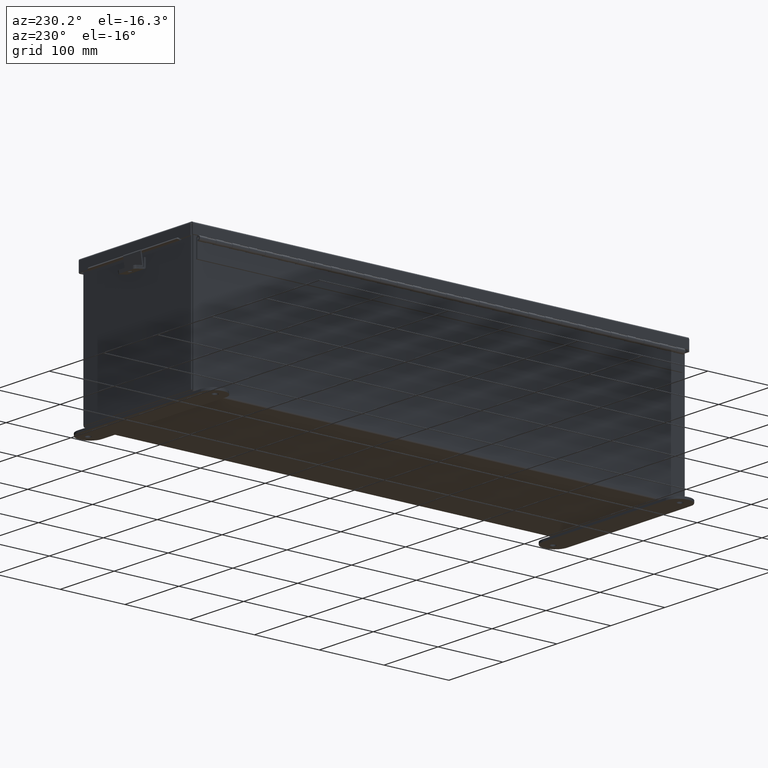
[diagram: clean part render]
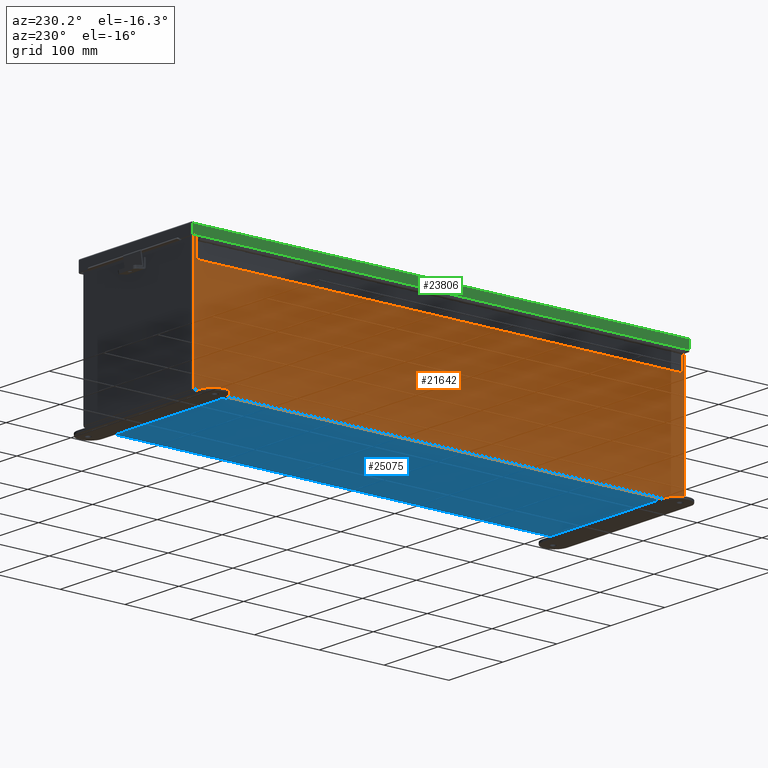
[diagram: same view with three faces highlighted in distinct colors, each labeled with its STEP entity id]
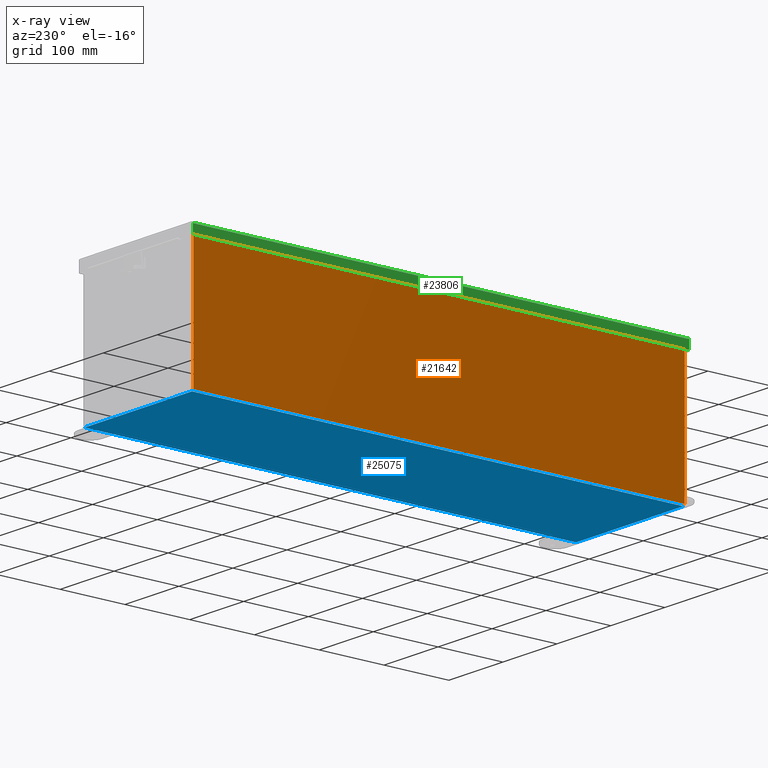
[diagram: x-ray of the same camera — body ghosted, the three highlighted faces saturated]
A machine part, auxiliary view with three faces highlighted in distinct colors.
The next image is the same camera in x-ray (body ghosted, the three faces saturated) — at least one of them is partly hidden behind the body in this view.
Their STEP definitions:

[orange] entity #21642 — the highlighted planar face has unit normal (1, 0, 0).
#181 = VERTEX_POINT ( 'NONE', #11195 ) ;
#613 = CARTESIAN_POINT ( 'NONE',  ( -4.000000000000000900, -14.92530000000000000, 0.01300000000000039000 ) ) ;
#937 = CARTESIAN_POINT ( 'NONE',  ( -4.000000000000000900, 14.92529999999999800, -1.417999849211356600E-014 ) ) ;
#1045 = DIRECTION ( 'NONE',  ( -3.479795166820706300E-015, 2.783836133456565100E-016, 1.000000000000000000 ) ) ;
#1255 = FACE_OUTER_BOUND ( 'NONE', #17171, .T. ) ;
#1970 = ORIENTED_EDGE ( 'NONE', *, *, #13761, .F. ) ;
#2481 = EDGE_CURVE ( 'NONE', #17202, #16959, #18126, .T. ) ;
#2558 = CARTESIAN_POINT ( 'NONE',  ( -4.000000000000028400, -14.92529999999999800, 7.837599999999999200 ) ) ;
#2726 = ORIENTED_EDGE ( 'NONE', *, *, #2481, .T. ) ;
#3441 = CARTESIAN_POINT ( 'NONE',  ( -4.000000000000000900, 14.92529999999999800, 0.01300000000000011600 ) ) ;
#4337 = CARTESIAN_POINT ( 'NONE',  ( -4.000000000000027500, 14.92529999999999800, 7.837599999999999200 ) ) ;
#5138 = VECTOR ( 'NONE', #1045, 39.37007874015748100 ) ;
#5485 = EDGE_CURVE ( 'NONE', #181, #17202, #14430, .T. ) ;
#5518 = VERTEX_POINT ( 'NONE', #613 ) ;
#6762 = VECTOR ( 'NONE', #25167, 39.37007874015748100 ) ;
#8067 = ORIENTED_EDGE ( 'NONE', *, *, #25911, .T. ) ;
#10499 = LINE ( 'NONE', #13136, #5138 ) ;
#10851 = DIRECTION ( 'NONE',  ( 1.000000000000000000, 0.0000000000000000000, 3.479795166820705900E-015 ) ) ;
#11195 = CARTESIAN_POINT ( 'NONE',  ( -4.000000000000028400, -14.92529999999999600, 7.837599999999999200 ) ) ;
#11683 = ORIENTED_EDGE ( 'NONE', *, *, #5485, .T. ) ;
#13136 = CARTESIAN_POINT ( 'NONE',  ( -4.000000000000000900, -14.92530000000000200, -1.002246732675576600E-014 ) ) ;
#13198 = VECTOR ( 'NONE', #13779, 39.37007874015748100 ) ;
#13761 = EDGE_CURVE ( 'NONE', #5518, #16959, #18603, .T. ) ;
#13779 = DIRECTION ( 'NONE',  ( 6.369233077286049900E-032, 1.000000000000000000, -1.830347124455966700E-017 ) ) ;
#14430 = LINE ( 'NONE', #2558, #19825 ) ;
#16701 = DIRECTION ( 'NONE',  ( 0.0000000000000000000, 1.000000000000000000, 0.0000000000000000000 ) ) ;
#16959 = VERTEX_POINT ( 'NONE', #3441 ) ;
#17171 = EDGE_LOOP ( 'NONE', ( #11683, #2726, #1970, #8067 ) ) ;
#17202 = VERTEX_POINT ( 'NONE', #4337 ) ;
#18126 = LINE ( 'NONE', #937, #6762 ) ;
#18603 = LINE ( 'NONE', #21841, #13198 ) ;
#18649 = CARTESIAN_POINT ( 'NONE',  ( -4.000000000000000900, 0.0000000000000000000, -1.417999849211356600E-014 ) ) ;
#19825 = VECTOR ( 'NONE', #16701, 39.37007874015748100 ) ;
#20584 = PLANE ( 'NONE',  #22172 ) ;
#21642 = ADVANCED_FACE ( 'NONE', ( #1255 ), #20584, .F. ) ;
#21841 = CARTESIAN_POINT ( 'NONE',  ( -4.000000000000000900, 14.92529999999999800, 0.01299999999999984300 ) ) ;
#22172 = AXIS2_PLACEMENT_3D ( 'NONE', #18649, #10851, #25011 ) ;
#25011 = DIRECTION ( 'NONE',  ( 3.479795166820705900E-015, 0.0000000000000000000, -1.000000000000000000 ) ) ;
#25167 = DIRECTION ( 'NONE',  ( 3.479795166820706300E-015, 0.0000000000000000000, -1.000000000000000000 ) ) ;
#25911 = EDGE_CURVE ( 'NONE', #5518, #181, #10499, .T. ) ;

[blue] entity #25075 — the highlighted planar face has unit normal (0, 0, -1).
#243 = EDGE_LOOP ( 'NONE', ( #3721, #4190, #13399, #13393 ) ) ;
#1417 = LINE ( 'NONE', #13609, #22297 ) ;
#2163 = CARTESIAN_POINT ( 'NONE',  ( 3.912299999999999200, -14.92530000000000200, -0.07470000000000000300 ) ) ;
#3308 = VERTEX_POINT ( 'NONE', #19859 ) ;
#3721 = ORIENTED_EDGE ( 'NONE', *, *, #9266, .F. ) ;
#3840 = LINE ( 'NONE', #7729, #13920 ) ;
#4190 = ORIENTED_EDGE ( 'NONE', *, *, #18957, .T. ) ;
#4476 = LINE ( 'NONE', #4673, #24726 ) ;
#4673 = CARTESIAN_POINT ( 'NONE',  ( -3.912300000000000100, -14.92530000000000200, -0.07469999999999966900 ) ) ;
#6327 = DIRECTION ( 'NONE',  ( 0.0000000000000000000, 0.0000000000000000000, -1.000000000000000000 ) ) ;
#6824 = EDGE_CURVE ( 'NONE', #13280, #20925, #1417, .T. ) ;
#7729 = CARTESIAN_POINT ( 'NONE',  ( -4.000000000000000900, 14.92529999999999800, -0.07470000000000000300 ) ) ;
#9266 = EDGE_CURVE ( 'NONE', #12339, #3308, #3840, .T. ) ;
#11122 = CARTESIAN_POINT ( 'NONE',  ( 3.912299999999999200, 14.92529999999999800, -0.07470000000000048800 ) ) ;
#12300 = CARTESIAN_POINT ( 'NONE',  ( 0.0000000000000000000, 0.0000000000000000000, -0.07470000000000000300 ) ) ;
#12339 = VERTEX_POINT ( 'NONE', #25499 ) ;
#13061 = VECTOR ( 'NONE', #15107, 39.37007874015748100 ) ;
#13280 = VERTEX_POINT ( 'NONE', #24466 ) ;
#13393 = ORIENTED_EDGE ( 'NONE', *, *, #20550, .T. ) ;
#13399 = ORIENTED_EDGE ( 'NONE', *, *, #6824, .F. ) ;
#13609 = CARTESIAN_POINT ( 'NONE',  ( -4.000000000000000900, -14.92530000000000200, -0.07470000000000000300 ) ) ;
#13920 = VECTOR ( 'NONE', #19845, 39.37007874015748100 ) ;
#15107 = DIRECTION ( 'NONE',  ( -0.0000000000000000000, -1.000000000000000000, -0.0000000000000000000 ) ) ;
#15671 = DIRECTION ( 'NONE',  ( 1.000000000000000000, 0.0000000000000000000, 0.0000000000000000000 ) ) ;
#16383 = PLANE ( 'NONE',  #25146 ) ;
#18957 = EDGE_CURVE ( 'NONE', #12339, #20925, #23861, .T. ) ;
#19845 = DIRECTION ( 'NONE',  ( -1.000000000000000000, -0.0000000000000000000, -0.0000000000000000000 ) ) ;
#19859 = CARTESIAN_POINT ( 'NONE',  ( -3.912300000000000100, 14.92529999999999800, -0.07470000000000000300 ) ) ;
#20463 = DIRECTION ( 'NONE',  ( -1.000000000000000000, 0.0000000000000000000, -0.0000000000000000000 ) ) ;
#20550 = EDGE_CURVE ( 'NONE', #13280, #3308, #4476, .T. ) ;
#20829 = DIRECTION ( 'NONE',  ( -0.0000000000000000000, 1.000000000000000000, -0.0000000000000000000 ) ) ;
#20925 = VERTEX_POINT ( 'NONE', #2163 ) ;
#22297 = VECTOR ( 'NONE', #15671, 39.37007874015748100 ) ;
#22889 = FACE_OUTER_BOUND ( 'NONE', #243, .T. ) ;
#23861 = LINE ( 'NONE', #11122, #13061 ) ;
#24466 = CARTESIAN_POINT ( 'NONE',  ( -3.912300000000000100, -14.92529999999999800, -0.07469999999999966900 ) ) ;
#24726 = VECTOR ( 'NONE', #20829, 39.37007874015748100 ) ;
#25075 = ADVANCED_FACE ( 'NONE', ( #22889 ), #16383, .T. ) ;
#25146 = AXIS2_PLACEMENT_3D ( 'NONE', #12300, #6327, #20463 ) ;
#25499 = CARTESIAN_POINT ( 'NONE',  ( 3.912299999999999200, 14.92529999999999600, -0.07470000000000048800 ) ) ;

[green] entity #23806 — the highlighted planar face has unit normal (1, -0, -0).
#426 = CARTESIAN_POINT ( 'NONE',  ( 4.156250000000014200, -15.15625000000000200, 0.01300000000000010700 ) ) ;
#1288 = LINE ( 'NONE', #16157, #10763 ) ;
#1381 = CARTESIAN_POINT ( 'NONE',  ( 4.156250000000014200, 15.07447893218813000, -1.639108796198557900E-014 ) ) ;
#1717 = CARTESIAN_POINT ( 'NONE',  ( 4.156250000000014200, -15.07447893218813700, 0.01300000000000010700 ) ) ;
#2132 = PLANE ( 'NONE',  #9509 ) ;
#2296 = CARTESIAN_POINT ( 'NONE',  ( 4.156250000000014200, -15.07447893218813600, 0.0000000000000000000 ) ) ;
#2492 = DIRECTION ( 'NONE',  ( 3.971430846686186800E-015, 6.022459973296638500E-029, 1.000000000000000000 ) ) ;
#2825 = CARTESIAN_POINT ( 'NONE',  ( 4.156250000000014200, 15.07447893218813000, 0.01300000000000010700 ) ) ;
#3409 = VERTEX_POINT ( 'NONE', #8006 ) ;
#4553 = VERTEX_POINT ( 'NONE', #25463 ) ;
#5177 = ORIENTED_EDGE ( 'NONE', *, *, #19601, .T. ) ;
#6218 = DIRECTION ( 'NONE',  ( -1.000000000000000000, -1.014027138383095000E-029, 3.971430846686186800E-015 ) ) ;
#8006 = CARTESIAN_POINT ( 'NONE',  ( 4.156250000000021300, -15.07447893218813600, 0.5503000000000010100 ) ) ;
#8772 = LINE ( 'NONE', #426, #20158 ) ;
#9509 = AXIS2_PLACEMENT_3D ( 'NONE', #16257, #6218, #20337 ) ;
#9811 = EDGE_CURVE ( 'NONE', #4553, #3409, #1288, .T. ) ;
#9930 = ORIENTED_EDGE ( 'NONE', *, *, #17248, .F. ) ;
#10151 = DIRECTION ( 'NONE',  ( -1.013688269061339700E-029, -1.000000000000000000, -6.034785924940740300E-029 ) ) ;
#10763 = VECTOR ( 'NONE', #10151, 39.37007874015748100 ) ;
#11492 = EDGE_LOOP ( 'NONE', ( #9930, #5177, #16606, #18798 ) ) ;
#11532 = DIRECTION ( 'NONE',  ( 3.971430846686186800E-015, 6.022459973296638500E-029, 1.000000000000000000 ) ) ;
#11948 = LINE ( 'NONE', #2296, #21456 ) ;
#12742 = EDGE_CURVE ( 'NONE', #20252, #3409, #11948, .T. ) ;
#13374 = FACE_OUTER_BOUND ( 'NONE', #11492, .T. ) ;
#13963 = LINE ( 'NONE', #1381, #24139 ) ;
#14538 = DIRECTION ( 'NONE',  ( -1.013688269061339700E-029, -1.000000000000000000, -6.034785924940740300E-029 ) ) ;
#16157 = CARTESIAN_POINT ( 'NONE',  ( 4.156250000000021300, -4.802076551362963100E-018, 0.5502999999999999000 ) ) ;
#16257 = CARTESIAN_POINT ( 'NONE',  ( 4.156250000000014200, 0.0000000000000000000, -1.748382715945128500E-014 ) ) ;
#16606 = ORIENTED_EDGE ( 'NONE', *, *, #9811, .T. ) ;
#17248 = EDGE_CURVE ( 'NONE', #25875, #20252, #8772, .T. ) ;
#18798 = ORIENTED_EDGE ( 'NONE', *, *, #12742, .F. ) ;
#19601 = EDGE_CURVE ( 'NONE', #25875, #4553, #13963, .T. ) ;
#20158 = VECTOR ( 'NONE', #14538, 39.37007874015748100 ) ;
#20252 = VERTEX_POINT ( 'NONE', #1717 ) ;
#20337 = DIRECTION ( 'NONE',  ( 3.971430846686186800E-015, 6.022459973296637300E-029, 1.000000000000000000 ) ) ;
#21456 = VECTOR ( 'NONE', #2492, 39.37007874015748100 ) ;
#23806 = ADVANCED_FACE ( 'NONE', ( #13374 ), #2132, .F. ) ;
#24139 = VECTOR ( 'NONE', #11532, 39.37007874015748100 ) ;
#25463 = CARTESIAN_POINT ( 'NONE',  ( 4.156250000000021300, 15.07447893218813000, 0.5502999999999999000 ) ) ;
#25875 = VERTEX_POINT ( 'NONE', #2825 ) ;